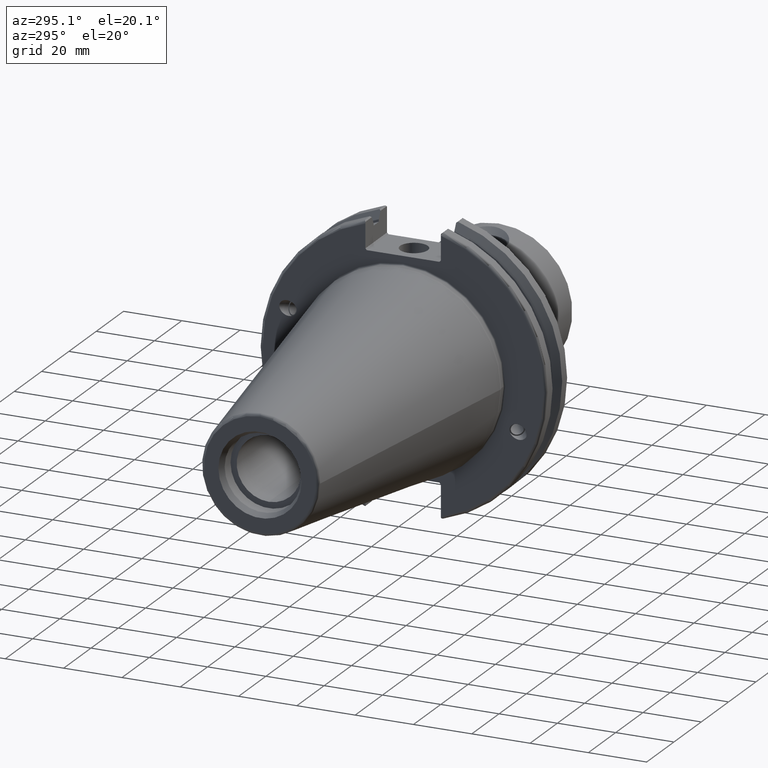
[diagram: clean part render]
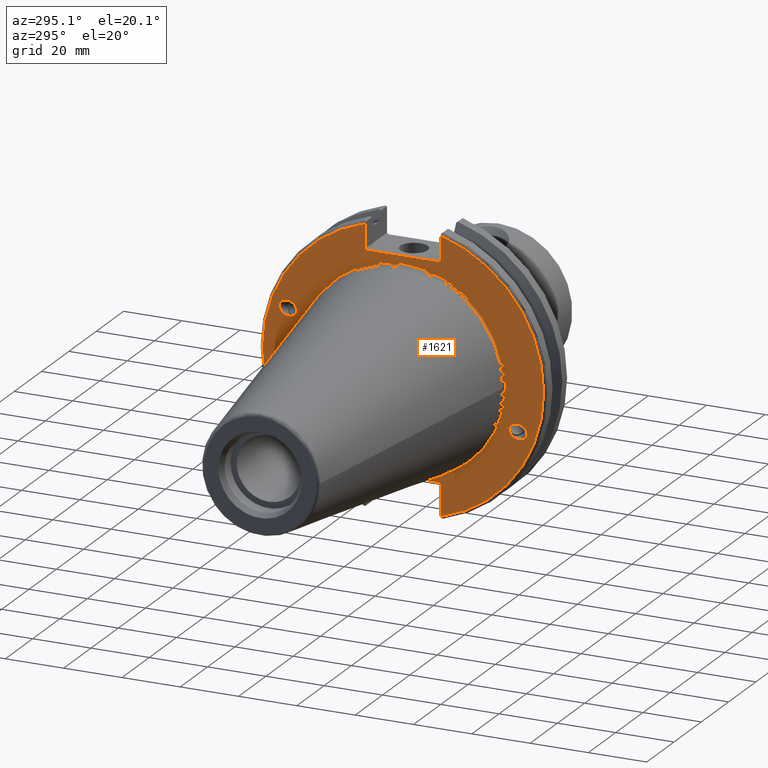
[diagram: same view with one face highlighted and labeled with its STEP entity id]
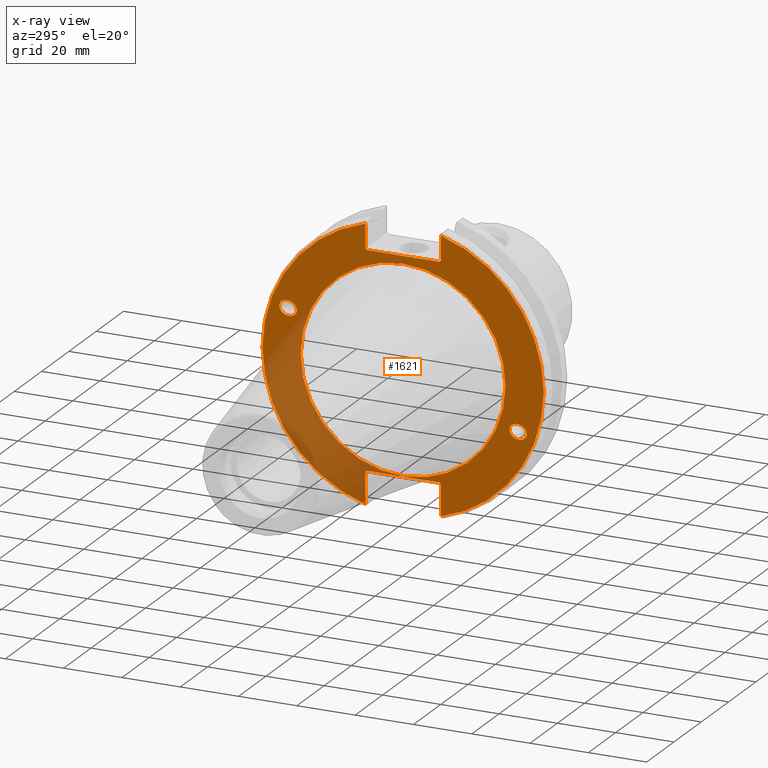
[diagram: x-ray of the same camera — body ghosted, the highlighted face saturated]
A machine part, auxiliary view. The second image highlights one B-rep face of the part: STEP entity #1621.
The next image is the same camera in x-ray: the body ghosted, the highlighted face saturated — about 27% of this face is hidden behind the body in this view.
In plain terms, the highlighted planar face has unit normal (-1, 0, 0).
Its self-contained STEP definition (entity closure, byte-faithful):
#78=FACE_BOUND('',#363,.T.);
#79=FACE_BOUND('',#364,.T.);
#80=FACE_BOUND('',#365,.T.);
#98=PLANE('',#1792);
#174=CIRCLE('',#1790,35.125);
#176=CIRCLE('',#1793,48.2125);
#177=CIRCLE('',#1794,48.2125);
#247=FACE_OUTER_BOUND('',#362,.T.);
#362=EDGE_LOOP('',(#1308,#1309,#1310,#1311,#1312,#1313,#1314,#1315,#1316,
#1317,#1318,#1319));
#363=EDGE_LOOP('',(#1320));
#364=EDGE_LOOP('',(#1321));
#365=EDGE_LOOP('',(#1322));
#510=LINE('',#3198,#604);
#511=LINE('',#3200,#605);
#512=LINE('',#3202,#606);
#513=LINE('',#3204,#607);
#514=LINE('',#3206,#608);
#515=LINE('',#3210,#609);
#516=LINE('',#3212,#610);
#517=LINE('',#3214,#611);
#518=LINE('',#3216,#612);
#519=LINE('',#3217,#613);
#604=VECTOR('',#2121,10.);
#605=VECTOR('',#2122,10.);
#606=VECTOR('',#2123,10.);
#607=VECTOR('',#2124,10.);
#608=VECTOR('',#2125,10.);
#609=VECTOR('',#2128,10.);
#610=VECTOR('',#2129,10.);
#611=VECTOR('',#2130,10.);
#612=VECTOR('',#2131,10.);
#613=VECTOR('',#2132,10.);
#653=ELLIPSE('',#1752,3.05193647190364,2.5);
#654=ELLIPSE('',#1786,3.05193647190364,2.5);
#725=VERTEX_POINT('',#2923);
#763=VERTEX_POINT('',#3182);
#766=VERTEX_POINT('',#3189);
#767=VERTEX_POINT('',#3194);
#768=VERTEX_POINT('',#3195);
#769=VERTEX_POINT('',#3197);
#770=VERTEX_POINT('',#3199);
#771=VERTEX_POINT('',#3201);
#772=VERTEX_POINT('',#3203);
#773=VERTEX_POINT('',#3205);
#774=VERTEX_POINT('',#3207);
#775=VERTEX_POINT('',#3209);
#776=VERTEX_POINT('',#3211);
#777=VERTEX_POINT('',#3213);
#778=VERTEX_POINT('',#3215);
#910=EDGE_CURVE('',#725,#725,#653,.T.);
#961=EDGE_CURVE('',#763,#763,#654,.T.);
#964=EDGE_CURVE('',#766,#766,#174,.T.);
#966=EDGE_CURVE('',#767,#768,#176,.T.);
#967=EDGE_CURVE('',#767,#769,#510,.T.);
#968=EDGE_CURVE('',#770,#769,#511,.T.);
#969=EDGE_CURVE('',#770,#771,#512,.T.);
#970=EDGE_CURVE('',#772,#771,#513,.T.);
#971=EDGE_CURVE('',#772,#773,#514,.T.);
#972=EDGE_CURVE('',#774,#773,#177,.T.);
#973=EDGE_CURVE('',#774,#775,#515,.T.);
#974=EDGE_CURVE('',#776,#775,#516,.T.);
#975=EDGE_CURVE('',#776,#777,#517,.T.);
#976=EDGE_CURVE('',#778,#777,#518,.T.);
#977=EDGE_CURVE('',#778,#768,#519,.T.);
#1308=ORIENTED_EDGE('',*,*,#966,.F.);
#1309=ORIENTED_EDGE('',*,*,#967,.T.);
#1310=ORIENTED_EDGE('',*,*,#968,.F.);
#1311=ORIENTED_EDGE('',*,*,#969,.T.);
#1312=ORIENTED_EDGE('',*,*,#970,.F.);
#1313=ORIENTED_EDGE('',*,*,#971,.T.);
#1314=ORIENTED_EDGE('',*,*,#972,.F.);
#1315=ORIENTED_EDGE('',*,*,#973,.T.);
#1316=ORIENTED_EDGE('',*,*,#974,.F.);
#1317=ORIENTED_EDGE('',*,*,#975,.T.);
#1318=ORIENTED_EDGE('',*,*,#976,.F.);
#1319=ORIENTED_EDGE('',*,*,#977,.T.);
#1320=ORIENTED_EDGE('',*,*,#910,.T.);
#1321=ORIENTED_EDGE('',*,*,#961,.T.);
#1322=ORIENTED_EDGE('',*,*,#964,.F.);
#1621=ADVANCED_FACE('',(#247,#78,#79,#80),#98,.T.);
#1752=AXIS2_PLACEMENT_3D('',#2925,#2021,#2022);
#1786=AXIS2_PLACEMENT_3D('',#3184,#2105,#2106);
#1790=AXIS2_PLACEMENT_3D('',#3191,#2113,#2114);
#1792=AXIS2_PLACEMENT_3D('',#3193,#2117,#2118);
#1793=AXIS2_PLACEMENT_3D('',#3196,#2119,#2120);
#1794=AXIS2_PLACEMENT_3D('',#3208,#2126,#2127);
#2021=DIRECTION('center_axis',(1.,0.,0.));
#2022=DIRECTION('ref_axis',(0.,-0.939692620785908,-0.342020143325668));
#2105=DIRECTION('center_axis',(1.,0.,0.));
#2106=DIRECTION('ref_axis',(0.,0.939692620785908,0.342020143325669));
#2113=DIRECTION('center_axis',(-1.,0.,0.));
#2114=DIRECTION('ref_axis',(0.,-1.,1.83697019872103E-16));
#2117=DIRECTION('center_axis',(-1.,0.,0.));
#2118=DIRECTION('ref_axis',(0.,0.,1.));
#2119=DIRECTION('center_axis',(1.,0.,0.));
#2120=DIRECTION('ref_axis',(0.,-1.,1.60812264967664E-16));
#2121=DIRECTION('',(0.,0.,-1.));
#2122=DIRECTION('',(0.,-0.707106781186549,0.707106781186546));
#2123=DIRECTION('',(0.,1.,0.));
#2124=DIRECTION('',(0.,-0.707106781186549,-0.707106781186546));
#2125=DIRECTION('',(0.,0.,1.));
#2126=DIRECTION('center_axis',(1.,0.,0.));
#2127=DIRECTION('ref_axis',(0.,1.,-6.12323399573677E-17));
#2128=DIRECTION('',(0.,0.,1.));
#2129=DIRECTION('',(0.,0.707106781186549,-0.707106781186546));
#2130=DIRECTION('',(0.,-1.,0.));
#2131=DIRECTION('',(0.,0.707106781186549,0.707106781186546));
#2132=DIRECTION('',(0.,0.,-1.));
#2923=CARTESIAN_POINT('',(3.175,-36.5992078912529,-13.3210222701368));
#2925=CARTESIAN_POINT('Origin',(3.175,-39.4670900730082,-14.3648460196781));
#3182=CARTESIAN_POINT('',(3.175,36.5992078912529,13.3210222701368));
#3184=CARTESIAN_POINT('Origin',(3.175,39.4670900730082,14.3648460196781));
#3189=CARTESIAN_POINT('',(3.175,-4.30157188200508E-15,35.125));
#3191=CARTESIAN_POINT('Origin',(3.175,0.,0.));
#3193=CARTESIAN_POINT('Origin',(3.175,49.2125,0.));
#3194=CARTESIAN_POINT('',(3.175,-12.95,46.4407434937254));
#3195=CARTESIAN_POINT('',(3.175,-12.95,-46.4407434937254));
#3196=CARTESIAN_POINT('Origin',(3.175,0.,0.));
#3197=CARTESIAN_POINT('',(3.175,-12.95,38.219));
#3198=CARTESIAN_POINT('',(3.175,-12.95,18.8595));
#3199=CARTESIAN_POINT('',(3.175,-12.45,37.719));
#3200=CARTESIAN_POINT('',(3.175,12.2703750000001,12.998625));
#3201=CARTESIAN_POINT('',(3.175,12.45,37.719));
#3202=CARTESIAN_POINT('',(3.175,24.60625,37.719));
#3203=CARTESIAN_POINT('',(3.175,12.95,38.219));
#3204=CARTESIAN_POINT('',(3.175,12.335875,37.604875));
#3205=CARTESIAN_POINT('',(3.175,12.95,46.4407434937254));
#3206=CARTESIAN_POINT('',(3.175,12.95,18.8595));
#3207=CARTESIAN_POINT('',(3.175,12.95,-46.4407434937254));
#3208=CARTESIAN_POINT('Origin',(3.175,0.,0.));
#3209=CARTESIAN_POINT('',(3.175,12.95,-35.806));
#3210=CARTESIAN_POINT('',(3.175,12.95,-17.653));
#3211=CARTESIAN_POINT('',(3.175,12.45,-35.306));
#3212=CARTESIAN_POINT('',(3.175,12.939125,-35.795125));
#3213=CARTESIAN_POINT('',(3.175,-12.45,-35.306));
#3214=CARTESIAN_POINT('',(3.175,24.60625,-35.306));
#3215=CARTESIAN_POINT('',(3.175,-12.95,-35.806));
#3216=CARTESIAN_POINT('',(3.175,11.6671250000001,-11.188875));
#3217=CARTESIAN_POINT('',(3.175,-12.95,-17.653));